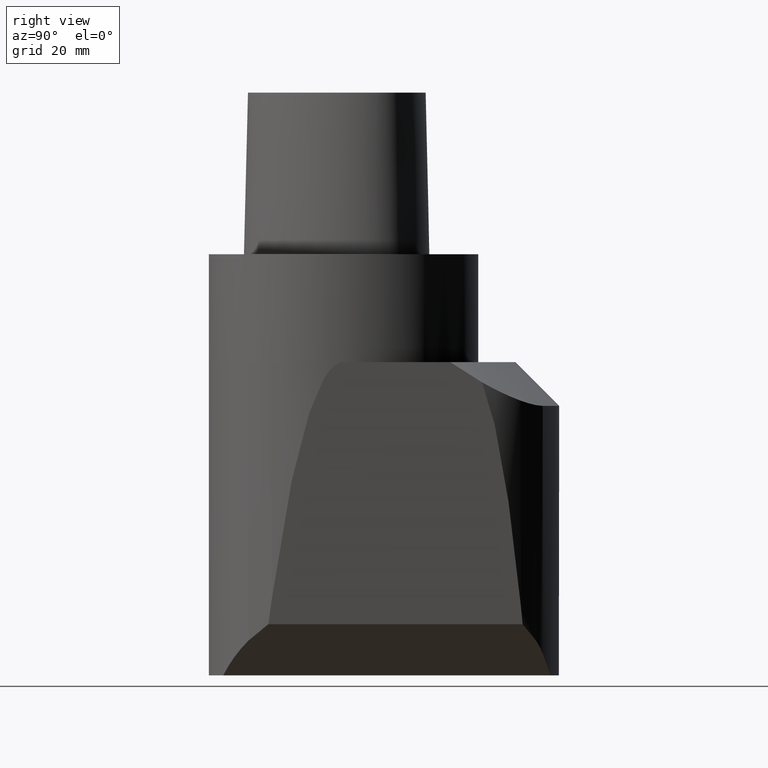
[diagram: clean part render]
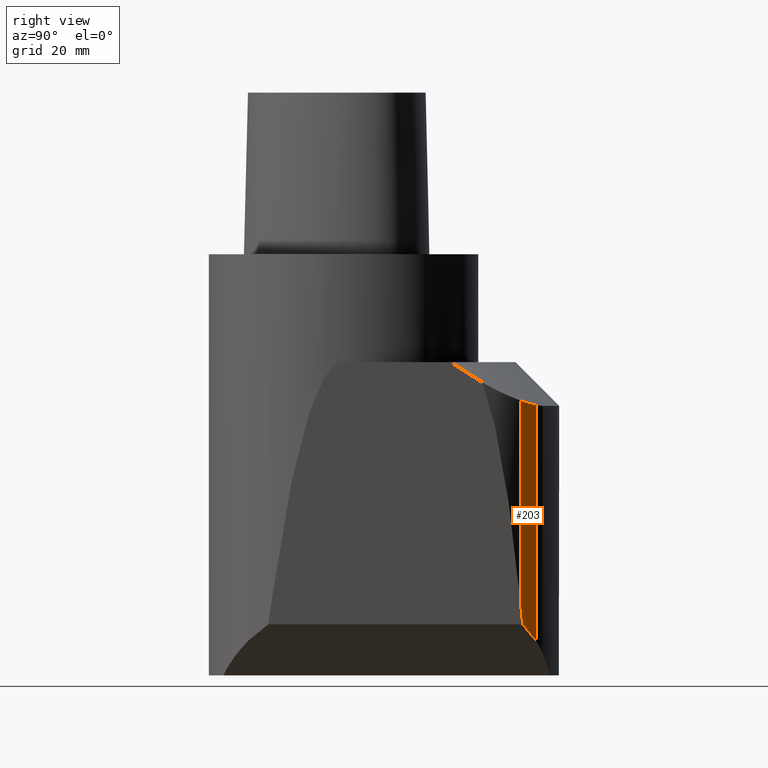
[diagram: same view with one face highlighted and labeled with its STEP entity id]
A machine part, right view. The second image highlights one B-rep face of the part: STEP entity #203.
In plain terms, the highlighted face is a freeform B-spline surface patch.
Its self-contained STEP definition (entity closure, byte-faithful):
#107=EDGE_CURVE('240[2]',#309,#310,#311,.T.);
#143=EDGE_CURVE('240[2]',#366,#310,#367,.T.);
#195=EDGE_CURVE('240[2]',#309,#438,#439,.F.);
#203=ADVANCED_FACE('240[2]',(#449),#450,.F.);
#246=EDGE_CURVE('240[2]',#499,#366,#500,.T.);
#274=EDGE_CURVE('240[2]',#499,#438,#534,.T.);
#309=VERTEX_POINT('',#565);
#310=VERTEX_POINT('',#566);
#311=LINE('',#567,#568);
#366=VERTEX_POINT('',#726);
#367=B_SPLINE_CURVE_WITH_KNOTS('',3,(#727,#728,#729,#730,#731,#732),.UNSPECIFIED.,.F.,.F.,(4,2,4),(7.79050749938835E-014,1.69320901081214,3.66958667680222),.UNSPECIFIED.);
#438=VERTEX_POINT('',#934);
#439=B_SPLINE_CURVE_WITH_KNOTS('',3,(#935,#936,#937,#938,#939,#940,#941,#942,#943,#944,#945,#946),.UNSPECIFIED.,.F.,.F.,(4,2,2,2,2,4),(179.824661305299,179.955119809875,181.332118004802,183.966017951121,184.086968040956,184.087166453046),.UNSPECIFIED.);
#449=FACE_OUTER_BOUND('',#960,.T.);
#450=B_SPLINE_SURFACE_WITH_KNOTS('',3,1,((#961,#962,#963),(#964,#965,#966),(#967,#968,#969),(#970,#971,#972),(#973,#974,#975),(#976,#977,#978),(#979,#980,#981),(#982,#983,#984),(#985,#986,#987),(#988,#989,#990),(#991,#992,#993),(#994,#995,#996),(#997,#998,#999),(#1000,#1001,#1002),(#1003,#1004,#1005),(#1006,#1007,#1008),(#1009,#1010,#1011),(#1012,#1013,#1014)),.UNSPECIFIED.,.F.,.F.,.F.,(4,3,2,2,2,2,3,4),(2,1,2),(-14.722289874224,0.0,0.0913727633335052,0.336179177978898,0.557596645893603,0.779014113808309,1.0,54.0019092237206),(-25.4348293158945,111.18791682274,236.18791682274),.UNSPECIFIED.);
#499=VERTEX_POINT('',#1476);
#500=LINE('',#1477,#1478);
#534=B_SPLINE_CURVE_WITH_KNOTS('',3,(#1630,#1631,#1632,#1633),.UNSPECIFIED.,.F.,.F.,(4,4),(105.211757909865,109.489484577172),.UNSPECIFIED.);
#565=CARTESIAN_POINT('',(28.29054136469,57.1745486429694,-114.709458599247));
#566=CARTESIAN_POINT('',(28.29054136469,57.1745486429694,-44.790937783002));
#567=CARTESIAN_POINT('',(28.29054136469,57.1745486429694,-125.000000000003));
#568=VECTOR('',#1652,1.0);
#726=CARTESIAN_POINT('',(33.6636013357642,52.6333996928742,-43.4780987076547));
#727=CARTESIAN_POINT('',(33.6636013357642,52.6333996928742,-43.4780987076546));
#728=CARTESIAN_POINT('',(33.3011070229559,53.0401429254736,-43.6254369796464));
#729=CARTESIAN_POINT('',(32.6586001865985,53.7396399868975,-43.8735809754009));
#730=CARTESIAN_POINT('',(30.6810749666254,55.5227612965714,-44.4203078056542));
#731=CARTESIAN_POINT('',(29.5261634582089,56.3989908343032,-44.6438048196785));
#732=CARTESIAN_POINT('',(28.2905413646901,57.1745486429695,-44.7909377830022));
#934=CARTESIAN_POINT('',(33.1927473655523,53.147149727207,-109.807252613168));
#935=CARTESIAN_POINT('',(33.1927473655523,53.147149727207,-109.807252613168));
#936=CARTESIAN_POINT('',(33.1498259533869,53.1926770678901,-109.850174025204));
#937=CARTESIAN_POINT('',(33.1049088959374,53.2399815383754,-109.895091082516));
#938=CARTESIAN_POINT('',(32.5615243132467,53.8075092873478,-110.438475663568));
#939=CARTESIAN_POINT('',(32.0578685368317,54.2896110499142,-110.942131438464));
#940=CARTESIAN_POINT('',(30.5377439078639,55.6299899180698,-112.462256062849));
#941=CARTESIAN_POINT('',(29.4994959095945,56.4046772962459,-113.500504057988));
#942=CARTESIAN_POINT('',(28.3885253405872,57.1128093519813,-114.611474623645));
#943=CARTESIAN_POINT('',(28.3396836585067,57.143702924702,-114.660316305579));
#944=CARTESIAN_POINT('',(28.2907018061625,57.1744479386976,-114.709298157775));
#945=CARTESIAN_POINT('',(28.2906215855096,57.1744982910994,-114.709378378428));
#946=CARTESIAN_POINT('',(28.29054136469,57.1745486429694,-114.709458599247));
#960=EDGE_LOOP('',(#1784,#1785,#1786,#1787,#1788));
#961=CARTESIAN_POINT('',(-98.1041709157493,136.508194907011,-261.622746138636));
#962=CARTESIAN_POINT('',(-98.1041709157493,136.508194907011,-125.000000000002));
#963=CARTESIAN_POINT('',(-98.1041709157493,136.508194907011,-2.58637555816676E-012));
#964=CARTESIAN_POINT('',(-55.9726001556028,110.063646152331,-261.622746138636));
#965=CARTESIAN_POINT('',(-55.9726001556028,110.063646152331,-125.000000000002));
#966=CARTESIAN_POINT('',(-55.9726001556028,110.063646152331,-2.58637555816676E-012));
#967=CARTESIAN_POINT('',(-13.8410293954564,83.61909739765,-261.622746138636));
#968=CARTESIAN_POINT('',(-13.8410293954564,83.61909739765,-125.000000000002));
#969=CARTESIAN_POINT('',(-13.8410293954564,83.61909739765,-2.58637555816676E-012));
#970=CARTESIAN_POINT('',(28.2905413646901,57.1745486429695,-261.622746138636));
#971=CARTESIAN_POINT('',(28.2905413646901,57.1745486429695,-125.000000000002));
#972=CARTESIAN_POINT('',(28.2905413646901,57.1745486429695,-2.58637555816676E-012));
#973=CARTESIAN_POINT('',(28.5520277283485,57.0104225786503,-261.622746138636));
#974=CARTESIAN_POINT('',(28.5520277283485,57.0104225786503,-125.000000000002));
#975=CARTESIAN_POINT('',(28.5520277283485,57.0104225786503,-2.58637555816676E-012));
#976=CARTESIAN_POINT('',(28.8044190914804,56.8452419721609,-261.622746138636));
#977=CARTESIAN_POINT('',(28.8044190914804,56.8452419721609,-125.000000000002));
#978=CARTESIAN_POINT('',(28.8044190914804,56.8452419721609,-2.58637555816676E-012));
#979=CARTESIAN_POINT('',(29.6974618326341,56.2386424694005,-261.622746138636));
#980=CARTESIAN_POINT('',(29.6974618326341,56.2386424694005,-125.000000000002));
#981=CARTESIAN_POINT('',(29.6974618326341,56.2386424694005,-2.58637555816676E-012));
#982=CARTESIAN_POINT('',(30.2779326660083,55.799199173426,-261.622746138636));
#983=CARTESIAN_POINT('',(30.2779326660083,55.799199173426,-125.000000000002));
#984=CARTESIAN_POINT('',(30.2779326660083,55.799199173426,-2.58637555816676E-012));
#985=CARTESIAN_POINT('',(31.2391174156948,55.0167694475992,-261.622746138636));
#986=CARTESIAN_POINT('',(31.2391174156948,55.0167694475992,-125.000000000002));
#987=CARTESIAN_POINT('',(31.2391174156948,55.0167694475992,-2.58637555816676E-012));
#988=CARTESIAN_POINT('',(31.6710737537825,54.6373444495732,-261.622746138636));
#989=CARTESIAN_POINT('',(31.6710737537825,54.6373444495732,-125.000000000002));
#990=CARTESIAN_POINT('',(31.6710737537825,54.6373444495732,-2.58637555816676E-012));
#991=CARTESIAN_POINT('',(32.4383673484121,53.921457878949,-261.622746138636));
#992=CARTESIAN_POINT('',(32.4383673484121,53.921457878949,-125.000000000002));
#993=CARTESIAN_POINT('',(32.4383673484121,53.921457878949,-2.58637555816676E-012));
#994=CARTESIAN_POINT('',(32.773806704022,53.5853963133823,-261.622746138636));
#995=CARTESIAN_POINT('',(32.773806704022,53.5853963133823,-125.000000000002));
#996=CARTESIAN_POINT('',(32.773806704022,53.5853963133823,-2.58637555816676E-012));
#997=CARTESIAN_POINT('',(33.3171564769852,53.0186840405432,-261.622746138636));
#998=CARTESIAN_POINT('',(33.3171564769852,53.0186840405432,-125.000000000002));
#999=CARTESIAN_POINT('',(33.3171564769852,53.0186840405432,-2.58637555816676E-012));
#1000=CARTESIAN_POINT('',(33.5256121953221,52.7882328780136,-261.622746138636));
#1001=CARTESIAN_POINT('',(33.5256121953221,52.7882328780136,-125.000000000002));
#1002=CARTESIAN_POINT('',(33.5256121953221,52.7882328780136,-2.58637555816676E-012));
#1003=CARTESIAN_POINT('',(33.6636013357642,52.6333996928741,-261.622746138636));
#1004=CARTESIAN_POINT('',(33.6636013357642,52.6333996928741,-125.000000000002));
#1005=CARTESIAN_POINT('',(33.6636013357642,52.6333996928741,-2.58637555816676E-012));
#1006=CARTESIAN_POINT('',(66.7593253279623,15.4977501497859,-261.622746138636));
#1007=CARTESIAN_POINT('',(66.7593253279623,15.4977501497859,-125.000000000002));
#1008=CARTESIAN_POINT('',(66.7593253279623,15.4977501497859,-2.58637555816676E-012));
#1009=CARTESIAN_POINT('',(99.8550493201603,-21.6378993933022,-261.622746138636));
#1010=CARTESIAN_POINT('',(99.8550493201603,-21.6378993933022,-125.000000000002));
#1011=CARTESIAN_POINT('',(99.8550493201603,-21.6378993933022,-2.58637555816676E-012));
#1012=CARTESIAN_POINT('',(132.950773312358,-58.7735489363904,-261.622746138636));
#1013=CARTESIAN_POINT('',(132.950773312358,-58.7735489363904,-125.000000000002));
#1014=CARTESIAN_POINT('',(132.950773312358,-58.7735489363904,-2.58637555816676E-012));
#1476=CARTESIAN_POINT('',(33.6636013357642,52.6333996928742,-104.425367178356));
#1477=CARTESIAN_POINT('',(33.6636013357642,52.6333996928742,-125.000000000003));
#1478=VECTOR('',#1851,1.0);
#1630=CARTESIAN_POINT('',(33.6636013357642,52.6333996928742,-104.425367178356));
#1631=CARTESIAN_POINT('',(33.5254548337714,52.7884094483585,-106.004388900556));
#1632=CARTESIAN_POINT('',(33.3703685740562,52.9587444333429,-107.777032936916));
#1633=CARTESIAN_POINT('',(33.1927473655523,53.147149727207,-109.807252613168));
#1652=DIRECTION('',(-6.12323399573677E-017,-1.22464679914735E-016,1.0));
#1784=ORIENTED_EDGE('',*,*,#107,.T.);
#1785=ORIENTED_EDGE('',*,*,#143,.F.);
#1786=ORIENTED_EDGE('',*,*,#246,.F.);
#1787=ORIENTED_EDGE('',*,*,#274,.T.);
#1788=ORIENTED_EDGE('',*,*,#195,.F.);
#1851=DIRECTION('',(-6.12323399573677E-017,-1.22464679914735E-016,1.0));